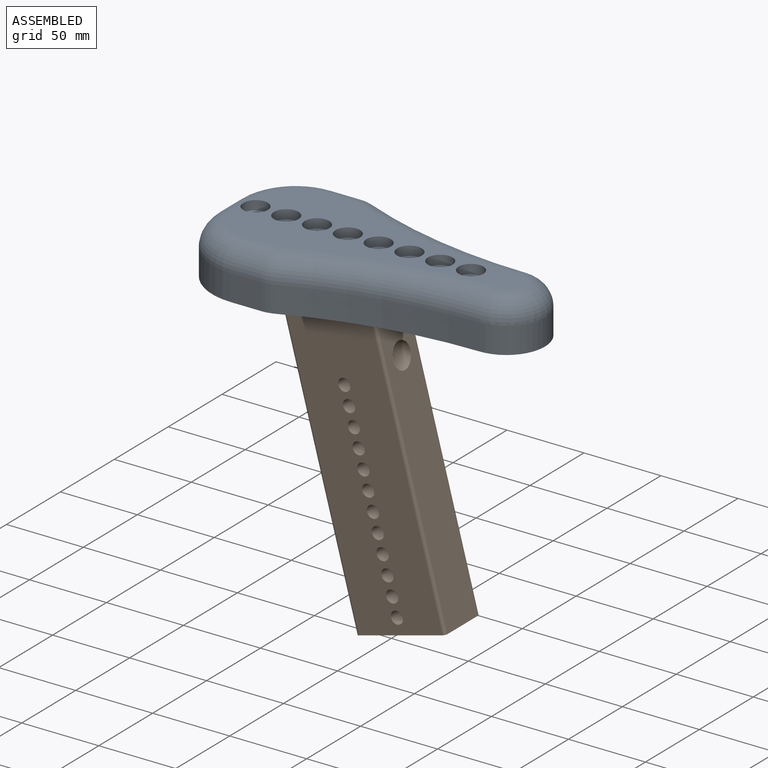
[diagram: assembled view]
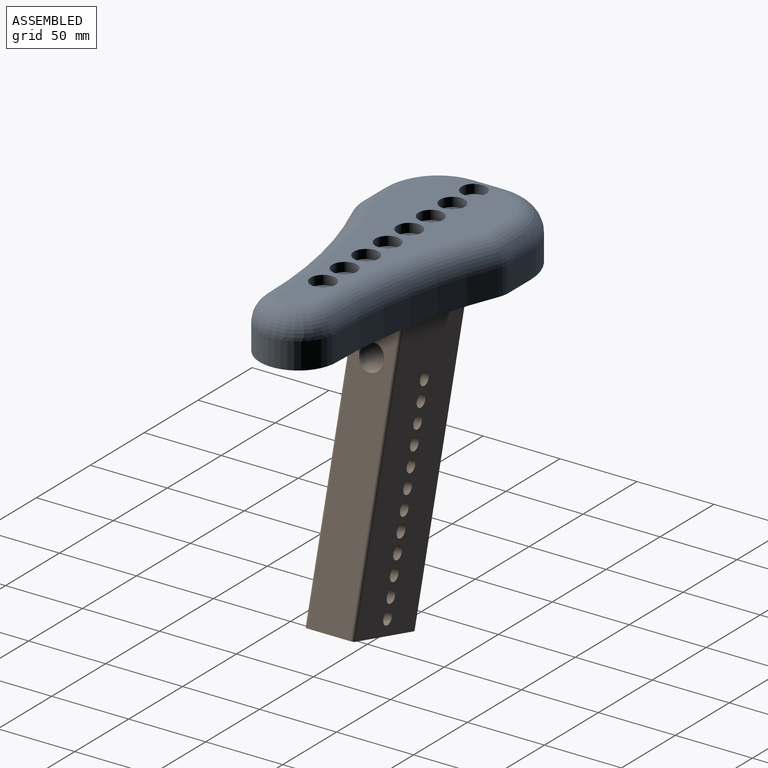
[diagram: assembled view, second angle]
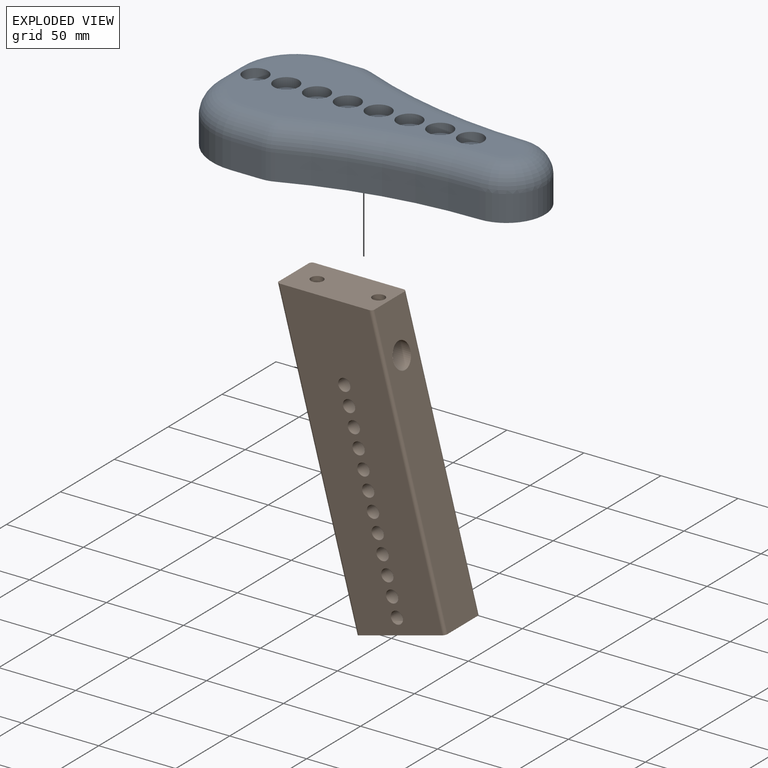
[diagram: exploded view]
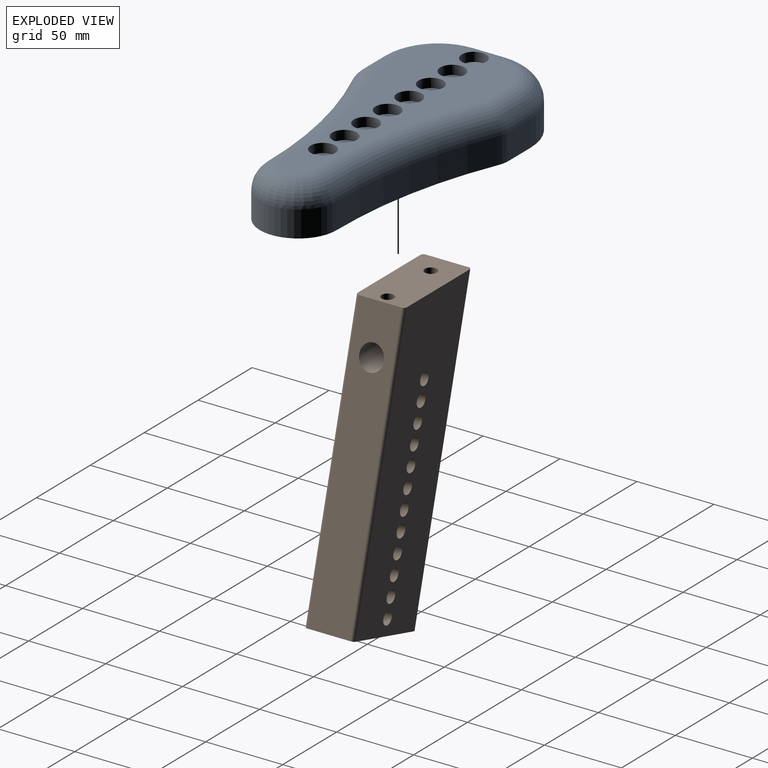
[diagram: exploded view, second angle]
ASSEMBLY  parts=2 mates=2
PART A: 46 faces, bbox 212.3x106.6x32 mm
  f0: plane 179x70mm, normal (0,0,1), area 5991.3mm2, adj f1,f13,f14,f15,f16,f17,f18,f19
  f1: cylinder r=15mm len=20mm, axis (0,1,0), area 456.7mm2, adj f0,f4,f13,f15,f24
  f2: plane 20x17mm, normal (0,1,0), area 340mm2, adj f3,f11,f12,f17
  f3: cylinder r=40mm len=40mm, axis (0,0,-1), area 1068.1mm2, adj f2,f4,f12,f15
  f4: plane 20x17mm, normal (-1,0,0), area 340mm2, adj f1,f3,f5,f12
  f5: cylinder r=40mm len=40mm, axis (0,0,-1), area 1068.1mm2, adj f4,f6,f12,f13
  f6: plane 20x17mm, normal (0,-1,0), area 340mm2, adj f5,f7,f12,f14
  f7: cylinder r=20mm len=17mm, axis (0,0,-1), area 135.3mm2, adj f6,f8,f12,f16
  f8: cylinder r=300mm len=116.25mm, axis (0,0,-1), area 2029.3mm2, adj f7,f9,f12,f18
  f9: cylinder r=25mm len=50mm, axis (0,0,-1), area 1335.2mm2, adj f8,f10,f12,f20
  f10: cylinder r=300mm len=116.25mm, axis (0,0,-1), area 2029.3mm2, adj f9,f11,f12,f21
  f11: cylinder r=20mm len=17mm, axis (0,0,-1), area 135.3mm2, adj f2,f10,f12,f19
  f12: plane 209x100mm, normal (0,0,-1), area 14259.2mm2, adj f2,f3,f4,f5,f6,f7,f8,f9
  f13: torus R=25mm, axis (0,0,1), area 1278.7mm2, adj f0,f1,f5,f14
  f14: cylinder r=15mm len=20mm, axis (-1,0,0), area 471.2mm2, adj f0,f6,f13,f16
  f15: torus R=25mm, axis (0,0,1), area 1278.7mm2, adj f0,f1,f3,f17
  f16: torus R=5mm, axis (0,0,1), area 136.4mm2, adj f0,f7,f14,f18
  f17: cylinder r=15mm len=20mm, axis (1,0,0), area 471.2mm2, adj f0,f2,f15,f19
  f18: torus R=315mm, axis (0,0,1), area 2863.7mm2, adj f0,f8,f16,f20
  f19: torus R=5mm, axis (0,0,1), area 136.4mm2, adj f0,f11,f17,f21
  f20: torus R=10mm, axis (0,0,1), area 1447.1mm2, adj f0,f9,f18,f21
  f21: torus R=315mm, axis (0,0,1), area 2863.7mm2, adj f0,f10,f19,f20
  f22: cylinder r=4mm len=26mm, axis (0,0,1), area 653.5mm2, adj f12,f23
  f23: plane 16x16mm, normal (0,0,1), area 150.8mm2, adj f22,f24
  f24: cylinder r=8mm len=16mm, axis (0,0,1), area 300.8mm2, adj f0,f1,f23
  f25: cylinder r=4mm len=26mm, axis (0,0,1), area 653.5mm2, adj f12,f26
  f26: plane 16x16mm, normal (0,0,1), area 150.8mm2, adj f25,f27
  f27: cylinder r=8mm len=16mm, axis (0,0,1), area 301.6mm2, adj f0,f26
  f28: cylinder r=4mm len=26mm, axis (0,0,1), area 653.5mm2, adj f12,f29
  f29: plane 16x16mm, normal (0,0,1), area 150.8mm2, adj f28,f30
  f30: cylinder r=8mm len=16mm, axis (0,0,1), area 301.6mm2, adj f0,f29
  f31: cylinder r=4mm len=26mm, axis (0,0,1), area 653.5mm2, adj f12,f32
  f32: plane 16x16mm, normal (0,0,1), area 150.8mm2, adj f31,f33
  f33: cylinder r=8mm len=16mm, axis (0,0,1), area 301.6mm2, adj f0,f32
  f34: cylinder r=4mm len=26mm, axis (0,0,1), area 653.5mm2, adj f12,f35
  f35: plane 16x16mm, normal (0,0,1), area 150.8mm2, adj f34,f36
  f36: cylinder r=8mm len=16mm, axis (0,0,1), area 301.6mm2, adj f0,f35
  f37: cylinder r=4mm len=26mm, axis (0,0,1), area 653.5mm2, adj f12,f38
  f38: plane 16x16mm, normal (0,0,1), area 150.8mm2, adj f37,f39
  f39: cylinder r=8mm len=16mm, axis (0,0,1), area 301.6mm2, adj f0,f38
  f40: cylinder r=4mm len=26mm, axis (0,0,1), area 653.5mm2, adj f12,f41
  f41: plane 16x16mm, normal (0,0,1), area 150.8mm2, adj f40,f42
  f42: cylinder r=8mm len=16mm, axis (0,0,1), area 301.6mm2, adj f0,f41
  f43: cylinder r=4mm len=26mm, axis (0,0,1), area 653.5mm2, adj f12,f44
  f44: plane 16x16mm, normal (0,0,1), area 150.8mm2, adj f43,f45
  f45: cylinder r=8mm len=16mm, axis (0,0,1), area 301.6mm2, adj f0,f44
PART B: 30 faces, bbox 68.5x32.2x200.2 mm
  f0: cylinder r=4mm len=23.32mm, axis (0.26,0,0.97), area 552.9mm2, adj f11,f17
  f1: cylinder r=4mm len=23.32mm, axis (0.26,0,0.97), area 552.9mm2, adj f11,f14
  f2: plane 199.92x28mm, normal (-1,0,0), area 5389.7mm2, adj f3,f5,f8,f13,f14
  f3: cylinder r=2mm len=200mm, axis (0,0,1), area 627.5mm2, adj f2,f5,f10,f11,f13
  f4: plane 183.88x28mm, normal (1,0,0), area 4940.6mm2, adj f6,f7,f11,f12,f17
  f5: plane 59.99x32mm, normal (0,0,-1), area 1916.3mm2, adj f2,f3,f6,f7,f8,f9,f10,f12
  f6: cylinder r=2mm len=184.46mm, axis (0,0,1), area 578.4mm2, adj f4,f5,f9,f11,f12
  f7: cylinder r=2mm len=184.46mm, axis (0,0,-1), area 578.4mm2, adj f4,f5,f10,f11,f12
  f8: cylinder r=2mm len=200mm, axis (0,0,-1), area 627.7mm2, adj f2,f5,f9,f11,f13
  f9: plane 199.46x56mm, normal (0,1,0), area 10146.7mm2, adj f5,f6,f8,f11,f18,f19,f20,f21
  f10: plane 199.46x56mm, normal (0,-1,0), area 10146.7mm2, adj f3,f5,f7,f11,f18,f19,f20,f21
  f11: plane 60.18x32.18mm, normal (0.26,0,0.97), area 1883.1mm2, adj f0,f1,f3,f4,f6,f7,f8,f9
  f12: plane 28.43x0.06mm, normal (0.97,0,-0.26), area 1.1mm2, adj f4,f5,f6,f7
  f13: plane 28.51x0.11mm, normal (-0.97,0,0.26), area 2.1mm2, adj f2,f3,f8,f11
  f14: cylinder r=8mm len=22.62mm, axis (-0.97,0,0.26), area 801.6mm2, adj f1,f2,f15
  f15: cone r=0mm half-angle=59deg, axis (-0.97,0,0.26), area 234.6mm2, adj f14
  f16: cone r=0mm half-angle=59deg, axis (0.97,0,-0.26), area 234.6mm2, adj f17
  f17: cylinder r=8mm len=30.79mm, axis (0.97,0,-0.26), area 1227mm2, adj f0,f4,f16
  f18: cylinder r=4mm len=32mm, axis (0,-1,0), area 804.2mm2, adj f9,f10
  f19: cylinder r=4mm len=32mm, axis (0,-1,0), area 804.2mm2, adj f9,f10
  f20: cylinder r=4mm len=32mm, axis (0,-1,0), area 804.2mm2, adj f9,f10
  f21: cylinder r=4mm len=32mm, axis (0,-1,0), area 804.2mm2, adj f9,f10
  f22: cylinder r=4mm len=32mm, axis (0,-1,0), area 804.2mm2, adj f9,f10
  f23: cylinder r=4mm len=32mm, axis (0,-1,0), area 804.2mm2, adj f9,f10
  f24: cylinder r=4mm len=32mm, axis (0,-1,0), area 804.2mm2, adj f9,f10
  f25: cylinder r=4mm len=32mm, axis (0,-1,0), area 804.2mm2, adj f9,f10
  f26: cylinder r=4mm len=32mm, axis (0,-1,0), area 804.2mm2, adj f9,f10
  f27: cylinder r=4mm len=32mm, axis (0,-1,0), area 804.2mm2, adj f9,f10
  f28: cylinder r=4mm len=32mm, axis (0,-1,0), area 804.2mm2, adj f9,f10
  f29: cylinder r=4mm len=32mm, axis (0,-1,0), area 804.2mm2, adj f9,f10
PLACE A t=(35.75,21.45,-127.66)mm
PLACE B rot(axis=(0,-1,0),15deg) t=(37.38,21.45,-313.08)mm
MATE planar B.f11 <-> A.f37  axis (0,0,1) through (-12.51,21.45,-127.66)mm
MATE slider A.f40 <-> B.f1  axis (0,0,-1) through (-28.25,21.45,-127.66)mm
